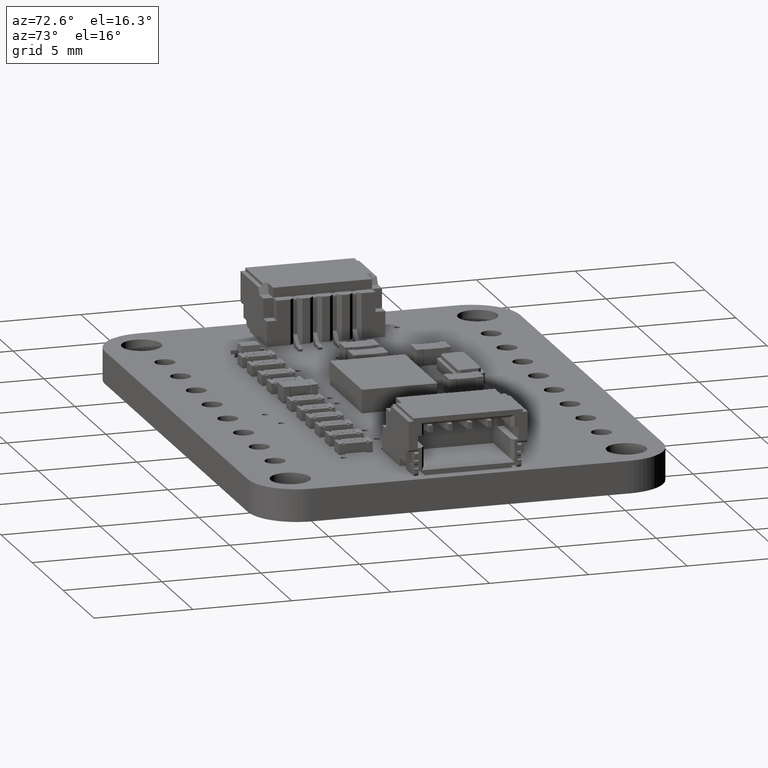
[diagram: clean part render]
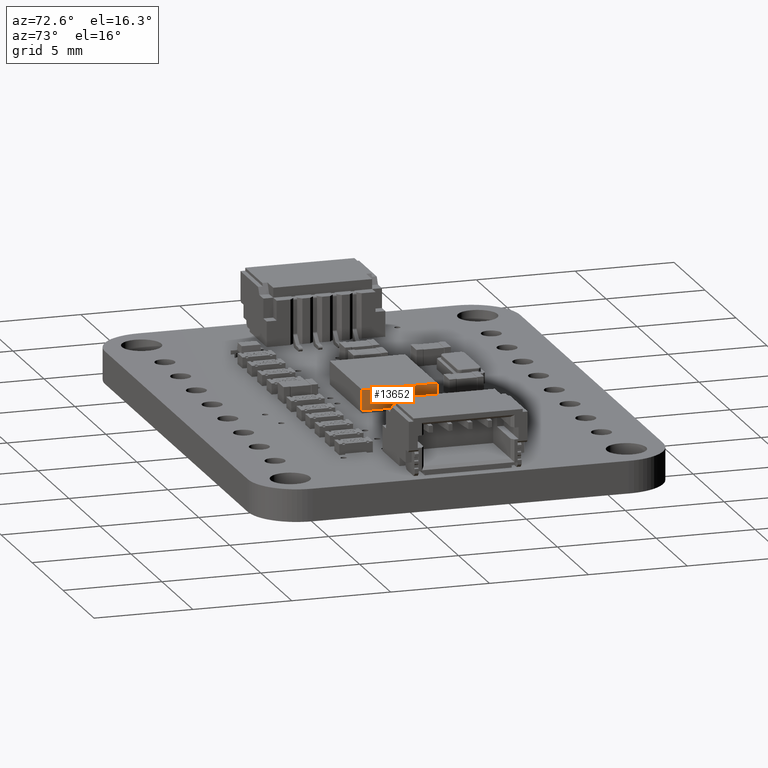
[diagram: same view with one face highlighted and labeled with its STEP entity id]
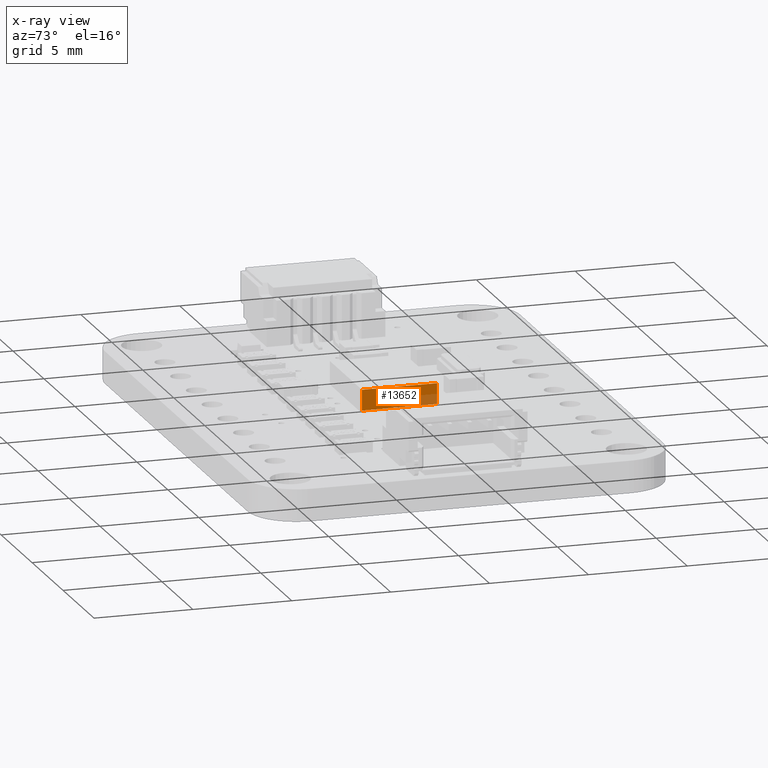
[diagram: x-ray of the same camera — body ghosted, the highlighted face saturated]
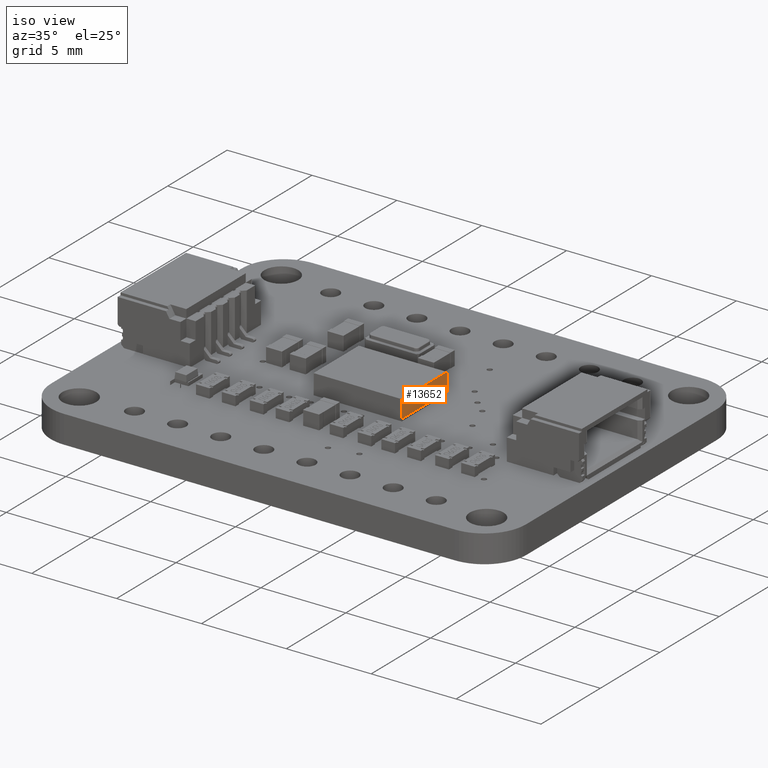
[diagram: same view with one face highlighted and labeled with its STEP entity id]
A machine part, auxiliary view. The second image highlights one B-rep face of the part: STEP entity #13652.
The next image is the same camera in x-ray: the body ghosted, the highlighted face saturated — about 28% of this face is hidden behind the body in this view.
A second angle (iso view) of the same face is appended — the face is thin or edge-on in the first view.
In plain terms, the highlighted planar face has unit normal (-1, -0, 0).
Its self-contained STEP definition (entity closure, byte-faithful):
#13652 = ADVANCED_FACE('',(#13653),#13687,.F.);
#13653 = FACE_BOUND('',#13654,.T.);
#13654 = EDGE_LOOP('',(#13655,#13665,#13673,#13681));
#13655 = ORIENTED_EDGE('',*,*,#13656,.F.);
#13656 = EDGE_CURVE('',#13657,#13659,#13661,.T.);
#13657 = VERTEX_POINT('',#13658);
#13658 = CARTESIAN_POINT('',(2.6,0.13,-1.9));
#13659 = VERTEX_POINT('',#13660);
#13660 = CARTESIAN_POINT('',(2.6,0.13,1.9));
#13661 = LINE('',#13662,#13663);
#13662 = CARTESIAN_POINT('',(2.6,0.13,1.9));
#13663 = VECTOR('',#13664,1.);
#13664 = DIRECTION('',(0.,0.,1.));
#13665 = ORIENTED_EDGE('',*,*,#13666,.F.);
#13666 = EDGE_CURVE('',#13667,#13657,#13669,.T.);
#13667 = VERTEX_POINT('',#13668);
#13668 = CARTESIAN_POINT('',(2.6,1.18,-1.9));
#13669 = LINE('',#13670,#13671);
#13670 = CARTESIAN_POINT('',(2.6,1.18,-1.9));
#13671 = VECTOR('',#13672,1.);
#13672 = DIRECTION('',(-0.,-1.,-0.));
#13673 = ORIENTED_EDGE('',*,*,#13674,.F.);
#13674 = EDGE_CURVE('',#13675,#13667,#13677,.T.);
#13675 = VERTEX_POINT('',#13676);
#13676 = CARTESIAN_POINT('',(2.6,1.18,1.9));
#13677 = LINE('',#13678,#13679);
#13678 = CARTESIAN_POINT('',(2.6,1.18,1.9));
#13679 = VECTOR('',#13680,1.);
#13680 = DIRECTION('',(0.,0.,-1.));
#13681 = ORIENTED_EDGE('',*,*,#13682,.T.);
#13682 = EDGE_CURVE('',#13675,#13659,#13683,.T.);
#13683 = LINE('',#13684,#13685);
#13684 = CARTESIAN_POINT('',(2.6,1.18,1.9));
#13685 = VECTOR('',#13686,1.);
#13686 = DIRECTION('',(-0.,-1.,-0.));
#13687 = PLANE('',#13688);
#13688 = AXIS2_PLACEMENT_3D('',#13689,#13690,#13691);
#13689 = CARTESIAN_POINT('',(2.6,1.18,1.9));
#13690 = DIRECTION('',(-1.,0.,0.));
#13691 = DIRECTION('',(0.,0.,1.));